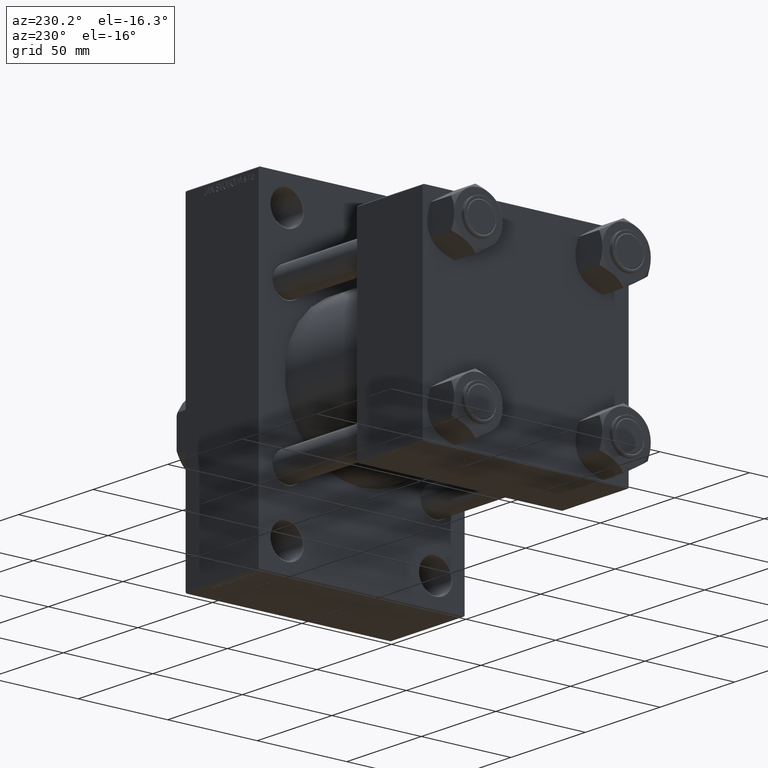
[diagram: clean part render]
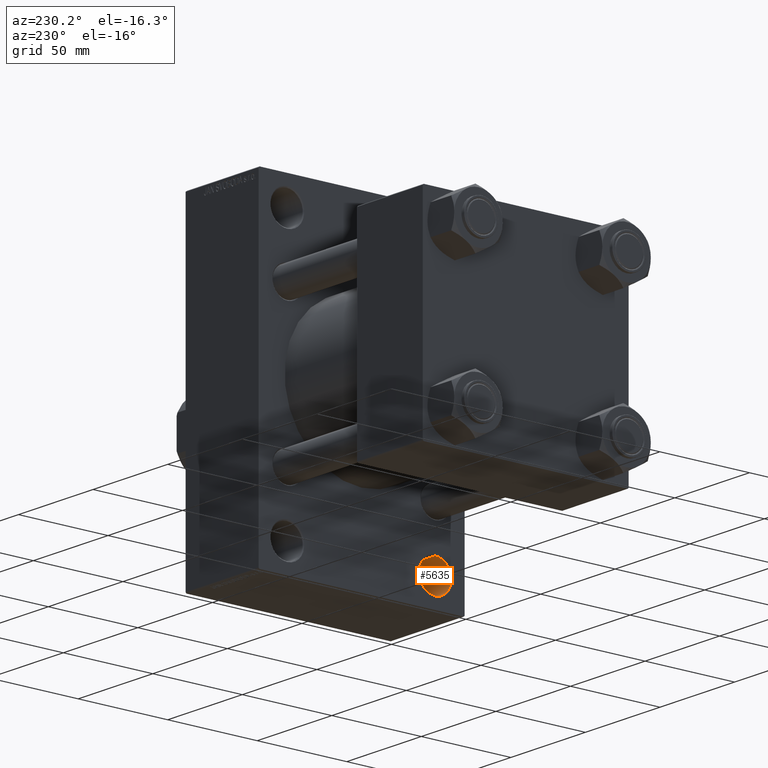
[diagram: same view with one face highlighted and labeled with its STEP entity id]
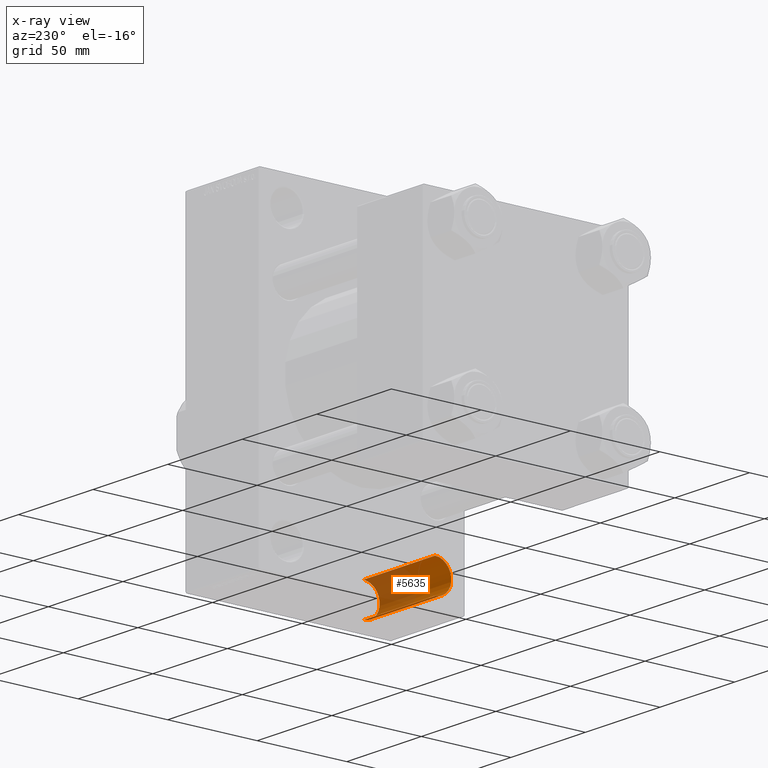
[diagram: x-ray of the same camera — body ghosted, the highlighted face saturated]
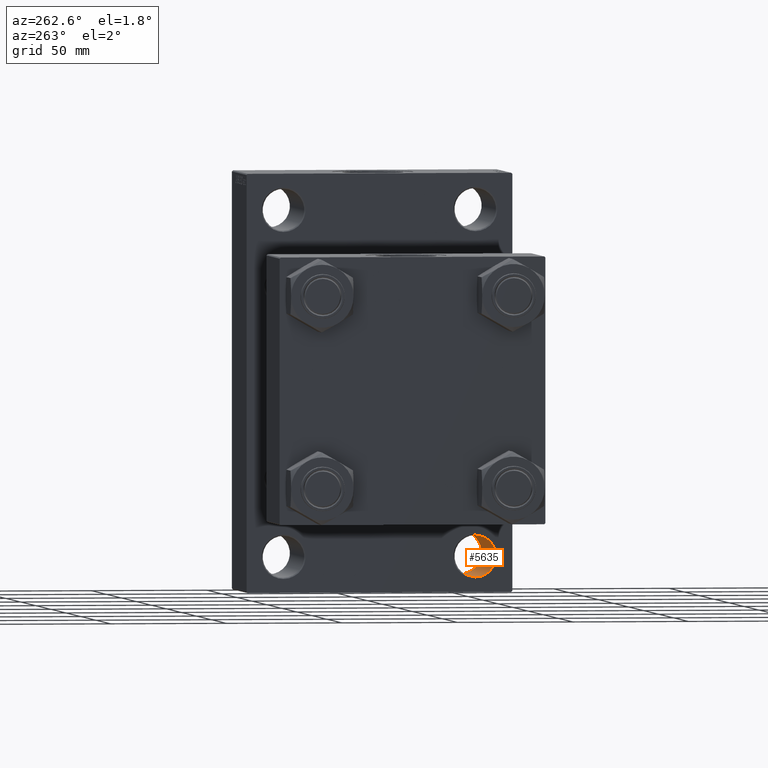
[diagram: same view with one face highlighted and labeled with its STEP entity id]
A machine part, auxiliary view. The second image highlights one B-rep face of the part: STEP entity #5635.
The next image is the same camera in x-ray: the body ghosted, the highlighted face saturated — about 49% of this face is hidden behind the body in this view.
A second angle (auxiliary view) of the same face is appended — the face is thin or edge-on in the first view.
In plain terms, the highlighted cylindrical surface (edge-blend (fillet) strip) has radius 9 mm, axis along (1, 0, 0).
Its self-contained STEP definition (entity closure, byte-faithful):
#3260 = CARTESIAN_POINT ( 'NONE',  ( 158.4999999999999716, -41.50000000000000711, -74.49999999999998579 ) ) ;
#3703 = CARTESIAN_POINT ( 'NONE',  ( 84.54415587728431092, -41.50000000000000711, -74.49999999999998579 ) ) ;
#3853 = VERTEX_POINT ( 'NONE', #19001 ) ;
#5635 = ADVANCED_FACE ( 'NONE', ( #10924 ), #25610, .F. ) ;
#10901 = CARTESIAN_POINT ( 'NONE',  ( 84.54415587728431092, -41.50000000000000711, -65.49999999999998579 ) ) ;
#10924 = FACE_OUTER_BOUND ( 'NONE', #45133, .T. ) ;
#11848 = DIRECTION ( 'NONE',  ( 1.000000000000000000, -0.000000000000000000, -0.000000000000000000 ) ) ;
#12170 = VECTOR ( 'NONE', #26716, 1000.000000000000000 ) ;
#12591 = VERTEX_POINT ( 'NONE', #26812 ) ;
#13503 = DIRECTION ( 'NONE',  ( -1.000000000000000000, -0.000000000000000000, -0.000000000000000000 ) ) ;
#18456 = EDGE_CURVE ( 'NONE', #3853, #12591, #22614, .T. ) ;
#19001 = CARTESIAN_POINT ( 'NONE',  ( 158.4999999999999716, -41.50000000000000711, -65.49999999999998579 ) ) ;
#21613 = ORIENTED_EDGE ( 'NONE', *, *, #24550, .T. ) ;
#22614 = CIRCLE ( 'NONE', #26470, 8.999999999999994671 ) ;
#24550 = EDGE_CURVE ( 'NONE', #40230, #42904, #45154, .T. ) ;
#25067 = CARTESIAN_POINT ( 'NONE',  ( 110.5000000000000426, -41.50000000000000711, -74.49999999999998579 ) ) ;
#25279 = ORIENTED_EDGE ( 'NONE', *, *, #18456, .T. ) ;
#25610 = CYLINDRICAL_SURFACE ( 'NONE', #37692, 8.999999999999994671 ) ;
#25825 = LINE ( 'NONE', #10901, #41387 ) ;
#26112 = DIRECTION ( 'NONE',  ( 0.000000000000000000, 0.000000000000000000, 1.000000000000000000 ) ) ;
#26470 = AXIS2_PLACEMENT_3D ( 'NONE', #3260, #32656, #26112 ) ;
#26716 = DIRECTION ( 'NONE',  ( 1.000000000000000000, -0.000000000000000000, -0.000000000000000000 ) ) ;
#26812 = CARTESIAN_POINT ( 'NONE',  ( 158.4999999999999716, -41.50000000000000711, -83.49999999999997158 ) ) ;
#28260 = ORIENTED_EDGE ( 'NONE', *, *, #33455, .T. ) ;
#31543 = CARTESIAN_POINT ( 'NONE',  ( 110.5000000000000426, -41.50000000000000711, -83.49999999999997158 ) ) ;
#31942 = CARTESIAN_POINT ( 'NONE',  ( 110.5000000000000426, -41.50000000000000711, -65.49999999999998579 ) ) ;
#32656 = DIRECTION ( 'NONE',  ( 1.000000000000000000, 0.000000000000000000, 0.000000000000000000 ) ) ;
#33455 = EDGE_CURVE ( 'NONE', #42904, #3853, #25825, .T. ) ;
#33766 = EDGE_CURVE ( 'NONE', #40230, #12591, #37810, .T. ) ;
#37574 = CARTESIAN_POINT ( 'NONE',  ( 84.54415587728431092, -41.50000000000000711, -83.49999999999997158 ) ) ;
#37692 = AXIS2_PLACEMENT_3D ( 'NONE', #3703, #40325, #47338 ) ;
#37810 = LINE ( 'NONE', #37574, #12170 ) ;
#39752 = AXIS2_PLACEMENT_3D ( 'NONE', #25067, #13503, #42918 ) ;
#40230 = VERTEX_POINT ( 'NONE', #31543 ) ;
#40325 = DIRECTION ( 'NONE',  ( 1.000000000000000000, -0.000000000000000000, -0.000000000000000000 ) ) ;
#41387 = VECTOR ( 'NONE', #11848, 1000.000000000000000 ) ;
#42838 = ORIENTED_EDGE ( 'NONE', *, *, #33766, .F. ) ;
#42904 = VERTEX_POINT ( 'NONE', #31942 ) ;
#42918 = DIRECTION ( 'NONE',  ( 0.000000000000000000, 0.000000000000000000, 1.000000000000000000 ) ) ;
#45133 = EDGE_LOOP ( 'NONE', ( #21613, #28260, #25279, #42838 ) ) ;
#45154 = CIRCLE ( 'NONE', #39752, 8.999999999999994671 ) ;
#47338 = DIRECTION ( 'NONE',  ( 0.000000000000000000, 0.000000000000000000, -1.000000000000000000 ) ) ;